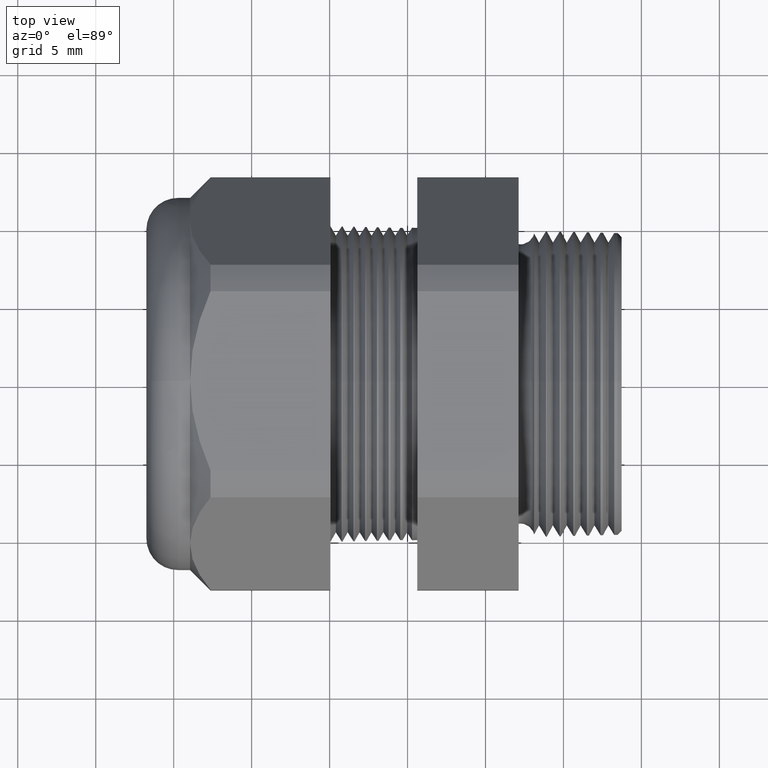
[diagram: clean part render]
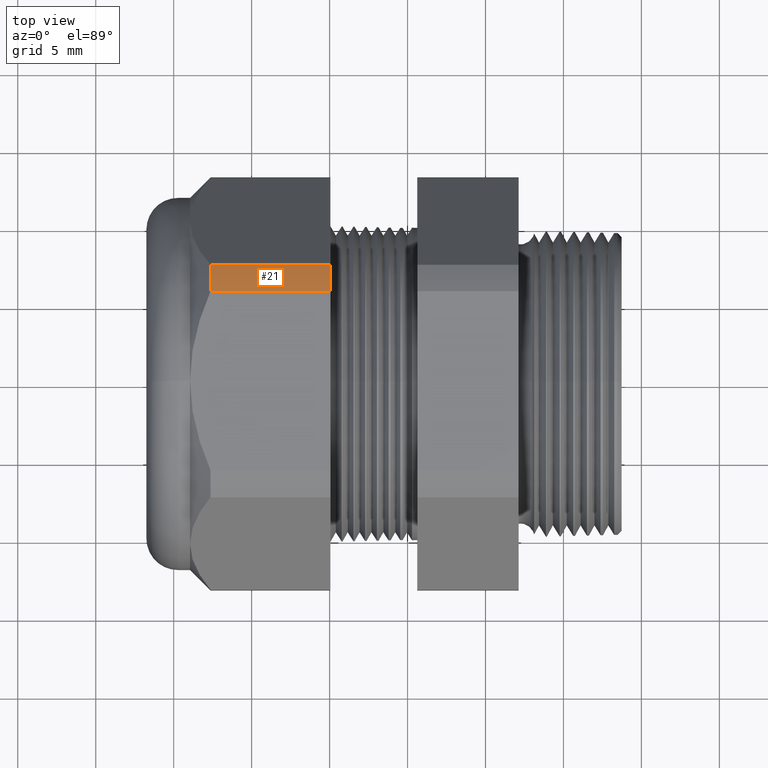
[diagram: same view with one face highlighted and labeled with its STEP entity id]
A machine part, top view. The second image highlights one B-rep face of the part: STEP entity #21.
In plain terms, the highlighted cylindrical surface (partial cylindrical patch) has radius 13.2512 mm, axis along (-1, 0, 0).
Its self-contained STEP definition (entity closure, byte-faithful):
#21 = ADVANCED_FACE ( 'NONE', ( #1084 ), #1083, .T. ) ;
#51 = ORIENTED_EDGE ( 'NONE', *, *, #79, .F. ) ;
#55 = EDGE_CURVE ( 'NONE', #84, #65, #1182, .T. ) ;
#65 = VERTEX_POINT ( 'NONE', #1157 ) ;
#68 = EDGE_CURVE ( 'NONE', #88, #80, #1218, .T. ) ;
#74 = ORIENTED_EDGE ( 'NONE', *, *, #68, .T. ) ;
#78 = ORIENTED_EDGE ( 'NONE', *, *, #55, .F. ) ;
#79 = EDGE_CURVE ( 'NONE', #65, #80, #1212, .T. ) ;
#80 = VERTEX_POINT ( 'NONE', #1200 ) ;
#83 = ORIENTED_EDGE ( 'NONE', *, *, #85, .T. ) ;
#84 = VERTEX_POINT ( 'NONE', #1194 ) ;
#85 = EDGE_CURVE ( 'NONE', #84, #88, #1193, .T. ) ;
#87 = EDGE_LOOP ( 'NONE', ( #83, #74, #51, #78 ) ) ;
#88 = VERTEX_POINT ( 'NONE', #1247 ) ;
#1079 = DIRECTION ( 'NONE',  ( 0.0000000000000000000, 0.0000000000000000000, 1.000000000000000000 ) ) ;
#1080 = DIRECTION ( 'NONE',  ( -1.000000000000000000, 0.0000000000000000000, 0.0000000000000000000 ) ) ;
#1081 = AXIS2_PLACEMENT_3D ( 'NONE', #1090, #1080, #1079 ) ;
#1083 = CYLINDRICAL_SURFACE ( 'NONE', #1081, 0.5217000000000000500 ) ;
#1084 = FACE_OUTER_BOUND ( 'NONE', #87, .T. ) ;
#1090 = CARTESIAN_POINT ( 'NONE',  ( -0.05000000000000001000, 0.0000000000000000000, 0.0000000000000000000 ) ) ;
#1157 = CARTESIAN_POINT ( 'NONE',  ( -0.7854330708661413400, 0.2264307620443832800, 0.4699999999999999200 ) ) ;
#1169 = DIRECTION ( 'NONE',  ( 0.0000000000000000000, 0.0000000000000000000, -1.000000000000000000 ) ) ;
#1170 = DIRECTION ( 'NONE',  ( 1.000000000000000000, 0.0000000000000000000, 0.0000000000000000000 ) ) ;
#1181 = AXIS2_PLACEMENT_3D ( 'NONE', #1183, #1170, #1169 ) ;
#1182 = CIRCLE ( 'NONE', #1181, 0.5217000000000000500 ) ;
#1183 = CARTESIAN_POINT ( 'NONE',  ( -0.7854330708661413400, 0.0000000000000000000, 0.0000000000000000000 ) ) ;
#1190 = DIRECTION ( 'NONE',  ( -1.000000000000000000, 0.0000000000000000000, 0.0000000000000000000 ) ) ;
#1191 = VECTOR ( 'NONE', #1190, 39.37007874015748100 ) ;
#1192 = CARTESIAN_POINT ( 'NONE',  ( -0.05000000000000001000, 0.2938165587564945900, 0.4310947921287050500 ) ) ;
#1193 = LINE ( 'NONE', #1192, #1191 ) ;
#1194 = CARTESIAN_POINT ( 'NONE',  ( -0.7854330708661413400, 0.2938165587564945900, 0.4310947921287050500 ) ) ;
#1200 = CARTESIAN_POINT ( 'NONE',  ( -1.088063779527558500, 0.2264307620443833400, 0.4700000000000000300 ) ) ;
#1201 = DIRECTION ( 'NONE',  ( -1.000000000000000000, 0.0000000000000000000, 0.0000000000000000000 ) ) ;
#1202 = VECTOR ( 'NONE', #1201, 39.37007874015748100 ) ;
#1211 = CARTESIAN_POINT ( 'NONE',  ( -0.05000000000000001000, 0.2264307620443832800, 0.4699999999999999200 ) ) ;
#1212 = LINE ( 'NONE', #1211, #1202 ) ;
#1214 = DIRECTION ( 'NONE',  ( 0.0000000000000000000, 0.0000000000000000000, -1.000000000000000000 ) ) ;
#1215 = DIRECTION ( 'NONE',  ( 1.000000000000000000, 0.0000000000000000000, 0.0000000000000000000 ) ) ;
#1216 = CARTESIAN_POINT ( 'NONE',  ( -1.088063779527558500, 0.0000000000000000000, 0.0000000000000000000 ) ) ;
#1217 = AXIS2_PLACEMENT_3D ( 'NONE', #1216, #1215, #1214 ) ;
#1218 = CIRCLE ( 'NONE', #1217, 0.5217000000000000500 ) ;
#1247 = CARTESIAN_POINT ( 'NONE',  ( -1.088063779527558500, 0.2938165587564946500, 0.4310947921287050500 ) ) ;